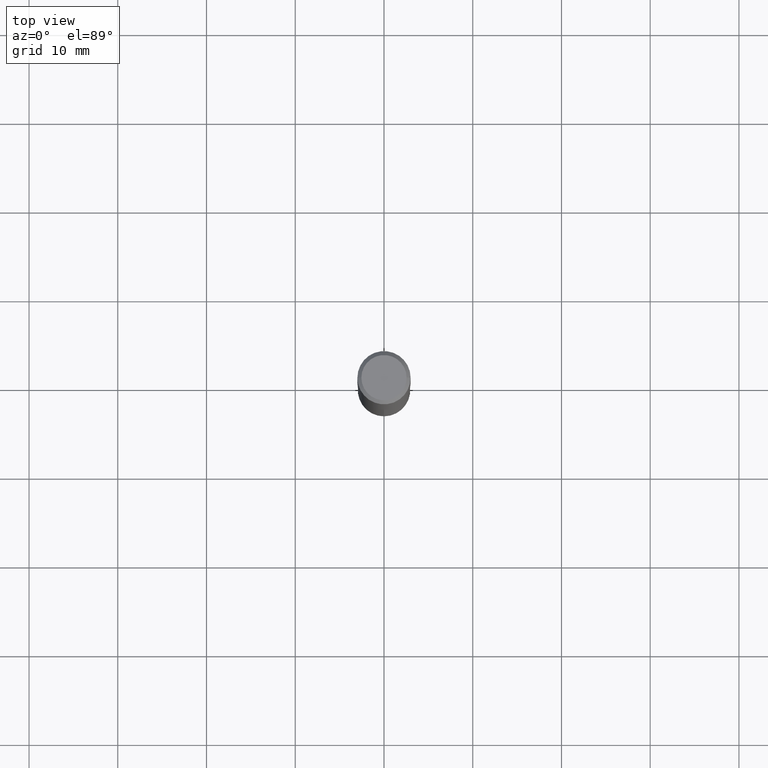
[diagram: clean part render]
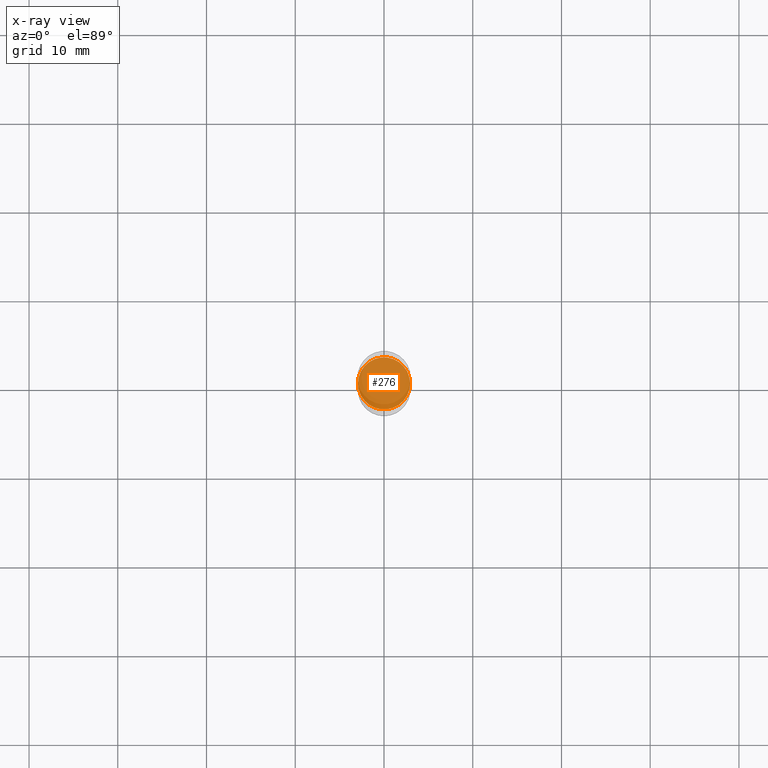
[diagram: x-ray — body ghosted, one internal face saturated and labeled with its STEP entity id]
A machine part, top view, then the same camera in x-ray: the body is ghosted and one INTERNAL B-rep face — a face not visible from any outside direction — is saturated and labeled: STEP entity #276.
In plain terms, the highlighted planar face has unit normal (-0, 0, 1).
Its self-contained STEP definition (entity closure, byte-faithful):
#11 = EDGE_LOOP ( 'NONE', ( #313, #304 ) ) ;
#28 = DIRECTION ( 'NONE',  ( 1.000000000000000000, -6.982962677686265922E-15, 4.876176775795935793E-29 ) ) ;
#60 = AXIS2_PLACEMENT_3D ( 'NONE', #402, #68, #28 ) ;
#68 = DIRECTION ( 'NONE',  ( -2.438088387897960049E-29, 3.491481338843145188E-15, 1.000000000000000000 ) ) ;
#70 = DIRECTION ( 'NONE',  ( 1.000000000000000000, -6.982962677686269866E-15, 0.000000000000000000 ) ) ;
#106 = CIRCLE ( 'NONE', #359, 0.1156500000000000028 ) ;
#122 = EDGE_CURVE ( 'NONE', #285, #365, #106, .T. ) ;
#142 = CIRCLE ( 'NONE', #370, 0.1156500000000000028 ) ;
#172 = PLANE ( 'NONE',  #60 ) ;
#175 = FACE_OUTER_BOUND ( 'NONE', #11, .T. ) ;
#185 = CARTESIAN_POINT ( 'NONE',  ( 3.657687693411109493E-29, -5.222208638507693246E-15, -1.495700000000000029 ) ) ;
#223 = DIRECTION ( 'NONE',  ( 1.000000000000000000, -6.982962677686269866E-15, 0.000000000000000000 ) ) ;
#276 = ADVANCED_FACE ( 'NONE', ( #175 ), #172, .F. ) ;
#280 = EDGE_CURVE ( 'NONE', #365, #285, #142, .T. ) ;
#285 = VERTEX_POINT ( 'NONE', #364 ) ;
#304 = ORIENTED_EDGE ( 'NONE', *, *, #122, .F. ) ;
#313 = ORIENTED_EDGE ( 'NONE', *, *, #280, .F. ) ;
#334 = DIRECTION ( 'NONE',  ( -2.445468806185136597E-29, 3.491481338843145583E-15, 1.000000000000000000 ) ) ;
#344 = CARTESIAN_POINT ( 'NONE',  ( 0.1156500000000000028, -6.029788272182109985E-15, -1.495700000000000029 ) ) ;
#359 = AXIS2_PLACEMENT_3D ( 'NONE', #185, #334, #223 ) ;
#362 = CARTESIAN_POINT ( 'NONE',  ( 3.657687693411109493E-29, -5.222208638507693246E-15, -1.495700000000000029 ) ) ;
#364 = CARTESIAN_POINT ( 'NONE',  ( -0.1156500000000000028, -4.397816737427025963E-15, -1.495700000000000029 ) ) ;
#365 = VERTEX_POINT ( 'NONE', #344 ) ;
#370 = AXIS2_PLACEMENT_3D ( 'NONE', #362, #474, #70 ) ;
#402 = CARTESIAN_POINT ( 'NONE',  ( 3.657687693411109493E-29, -5.222208638507693246E-15, -1.495700000000000029 ) ) ;
#474 = DIRECTION ( 'NONE',  ( -2.445468806185136597E-29, 3.491481338843145583E-15, 1.000000000000000000 ) ) ;